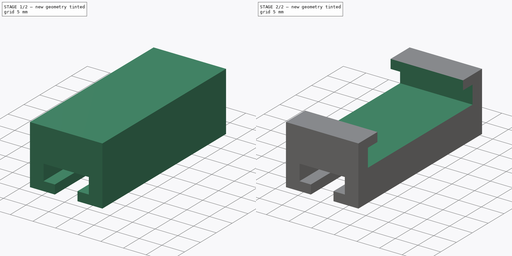
[diagram: build sequence overview — one tinted view per stage of 2, left to right]
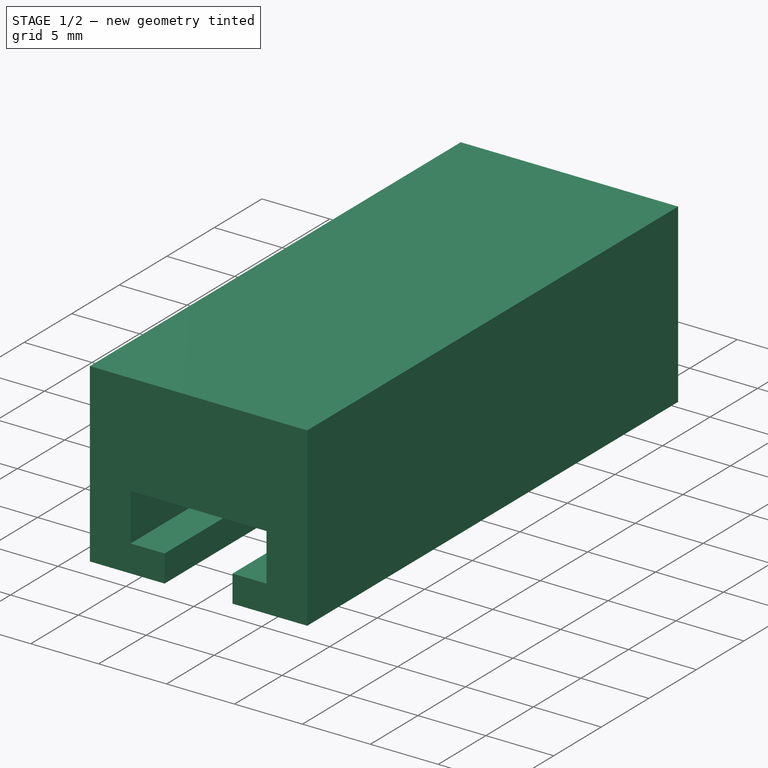
[diagram: stage 1 of 2 — iso view after this stage's code; geometry added in this stage tinted green]
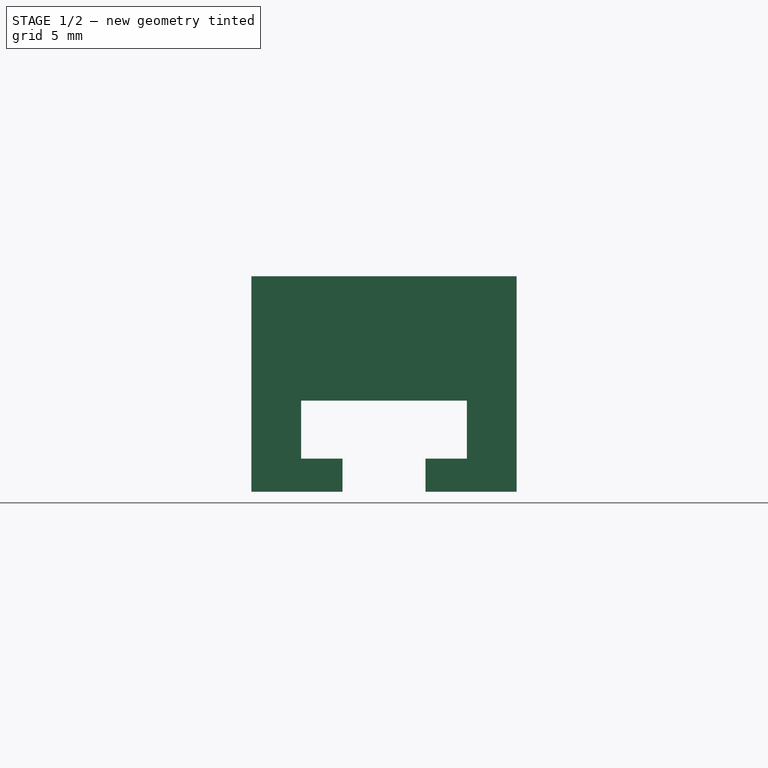
[diagram: stage 1 of 2 — front view after this stage's code; geometry added in this stage tinted green]
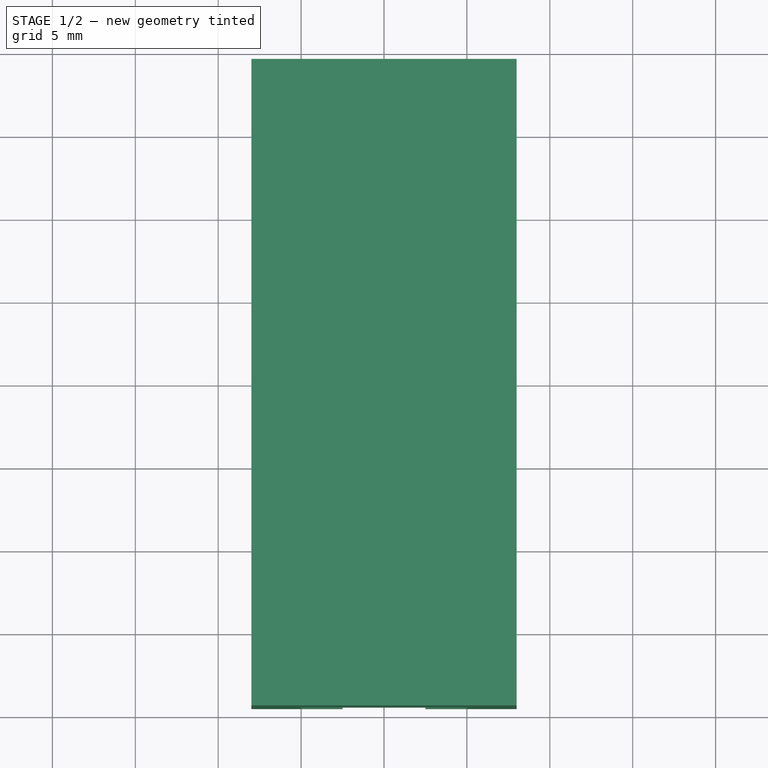
[diagram: stage 1 of 2 — top view after this stage's code; geometry added in this stage tinted green]
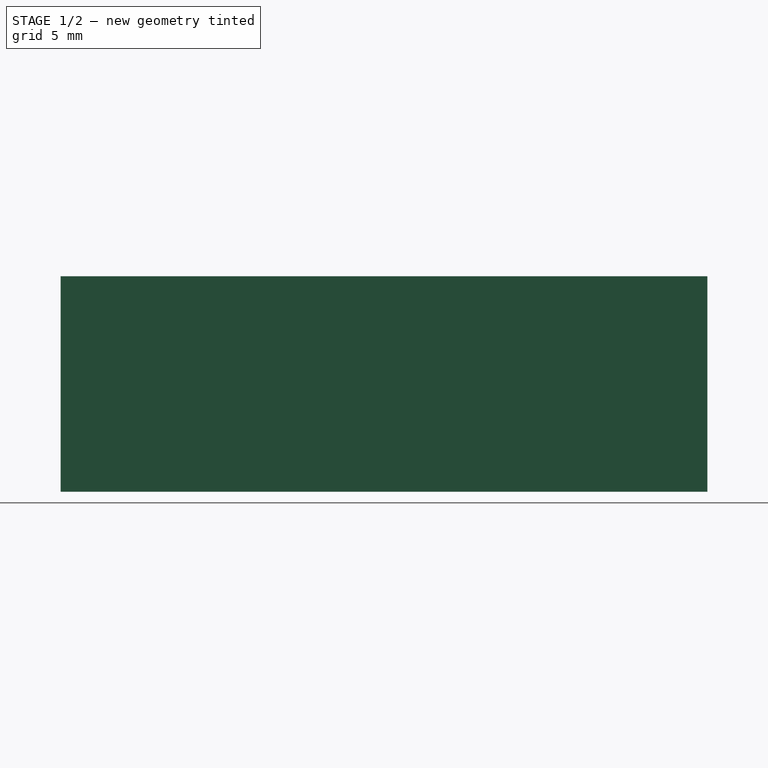
[diagram: stage 1 of 2 — right view after this stage's code; geometry added in this stage tinted green]
FCSTD DOCUMENT  (FreeCAD 0.18R16131 (Git))
Label: dishwasher-door-fixer
License: All rights reserved
LicenseURL: http://en.wikipedia.org/wiki/All_rights_reserved
objects: Sketcher::SketchObject×3, PartDesign::Pocket×2, Spreadsheet::Sheet×1, PartDesign::Pad×1, PartDesign::Body×1
note: 10 computed .brp shape members not serialized (recipe doc carries the construction recipe); baked Part::Feature solids carry a one-line shape summary decoded from their .brp

FEATURE [Spreadsheet::Sheet] Spreadsheet
  cells = A1=BaseWidth; B1(BaseWidth)==16mm; A2=BaseHeight; B2(BaseHeight)==39mm; A3=BaseDepth; B3(BaseDepth)==13mm; A4=GapLipDepth; B4(GapLipDepth)==3.5mm; A5=GapWidth; B5(GapWidth)==10mm; A6=GapDepth; B6(GapDepth)==5.5mm; A7=RailWidth; B7(RailWidth)==5mm; A8=SideGapWidth; B8(SideGapWidth)==BaseHeight - 2 * 6mm; A9=SideGapHeight; B9(SideGapHeight)==6mm; A10=SideLipHeight; B10(SideLipHeight)==2mm; A11=SideLipWidth; B11(SideLipWidth)==3mm; A12=SideGapDistance; B12(SideGapDistance)==BaseDepth - SideGapHeight; A13=Rounding; B13==0.5mm
FEATURE [Sketcher::SketchObject] Sketch  label="Base"
  MapMode = 5
  Support = -> [XY_Plane]
  expr: Constraints[10] = Spreadsheet.BaseHeight
  expr: Constraints[9] = Spreadsheet.BaseWidth
  sketch-geometry (4):
    g0: LineSegment StartX=-8 StartY=19.5 StartZ=0 EndX=8 EndY=19.5 EndZ=0
    g1: LineSegment StartX=8 StartY=19.5 StartZ=0 EndX=8 EndY=-19.5 EndZ=0
    g2: LineSegment StartX=8 StartY=-19.5 StartZ=0 EndX=-8 EndY=-19.5 EndZ=0
    g3: LineSegment StartX=-8 StartY=-19.5 StartZ=0 EndX=-8 EndY=19.5 EndZ=0
  constraints (11):
    c: Coincident(g0,g1)
    c: Coincident(g1,g2)
    c: Coincident(g2,g3)
    c: Coincident(g3,g0)
    c: Horizontal(g0)
    c: Horizontal(g2)
    c: Vertical(g1)
    c: Vertical(g3)
    c: Symmetric(g0,g2,g-1)
    c: DistanceX(g0,g0) = 16
    c: DistanceY(g1,g1) = 39
FEATURE [PartDesign::Pad] Pad  label="Base001"
  Length = 13
  Length2 = 100
  Profile = -> Sketch
  Type = 0
  expr: Length = Spreadsheet.BaseDepth
FEATURE [Sketcher::SketchObject] Sketch001  label="Gap"
  MapMode = 5
  Placement = pos=(0,19.5,0) rot=(0,0.707107,0.707107;3.14159rad)
  Support = -> [Pad]
  expr: Constraints[22] = Spreadsheet.GapDepth
  expr: Constraints[20] = Spreadsheet.RailWidth
  expr: Constraints[18] = Spreadsheet.GapLipDepth
  expr: Constraints[12] = Spreadsheet.GapWidth
  sketch-geometry (8):
    g0: LineSegment StartX=-5 StartY=5.5 StartZ=0 EndX=5 EndY=5.5 EndZ=0
    g1: LineSegment StartX=5 StartY=5.5 StartZ=0 EndX=5 EndY=2 EndZ=0
    g2: LineSegment StartX=5 StartY=2 StartZ=0 EndX=2.5 EndY=2 EndZ=0
    g3: LineSegment StartX=2.5 StartY=2 StartZ=0 EndX=2.5 EndY=0 EndZ=0
    g4: LineSegment StartX=2.5 StartY=0 StartZ=0 EndX=-2.5 EndY=0 EndZ=0
    g5: LineSegment StartX=-2.5 StartY=0 StartZ=0 EndX=-2.5 EndY=2 EndZ=0
    g6: LineSegment StartX=-2.5 StartY=2 StartZ=0 EndX=-5 EndY=2 EndZ=0
    g7: LineSegment StartX=-5 StartY=2 StartZ=0 EndX=-5 EndY=5.5 EndZ=0
  constraints (23):
    c: Coincident(g0,g1)
    c: Vertical(g1)
    c: Coincident(g1,g2)
    c: Horizontal(g2)
    c: Coincident(g2,g3)
    c: Vertical(g3)
    c: Coincident(g3,g4)
    c: Horizontal(g4)
    c: Coincident(g4,g5)
    c: Coincident(g5,g6)
    c: Coincident(g6,g7)
    c: Coincident(g7,g0)
    c: DistanceX(g0,g0) = 10
    c: Vertical(g7)
    c: Vertical(g5)
    c: Equal(g1,g7)
    c: Equal(g5,g3)
    c: Symmetric(g0,g0,g-2)
    c: DistanceY(g7,g7) = 3.5
    c: Equal(g6,g2)
    c: DistanceX(g4,g4) = 5
    c: Horizontal(g4,g-1)
    c: DistanceY(g3,g0) = 5.5
FEATURE [PartDesign::Pocket] Pocket  label="Gap001"
  BaseFeature = -> Pad
  Length = 5
  Length2 = 100
  Profile = -> Sketch001
  Type = 1
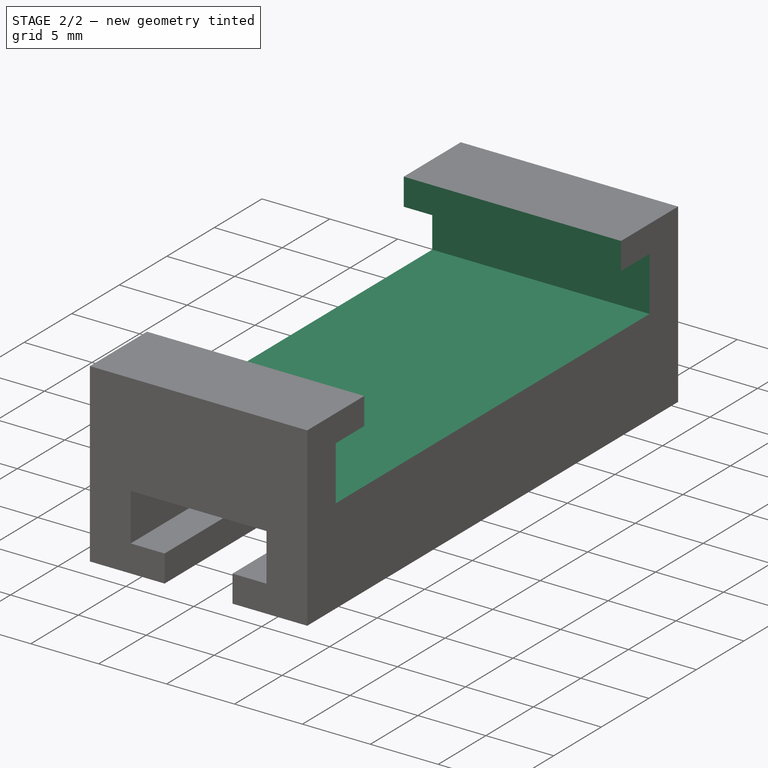
[diagram: stage 2 of 2 — iso view after this stage's code; geometry added in this stage tinted green]
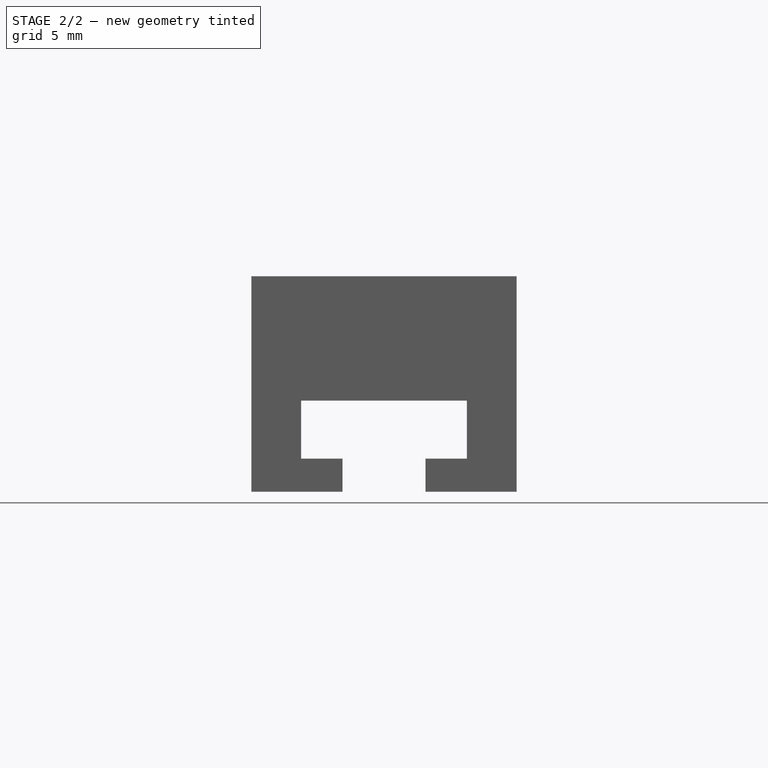
[diagram: stage 2 of 2 — front view after this stage's code; geometry added in this stage tinted green]
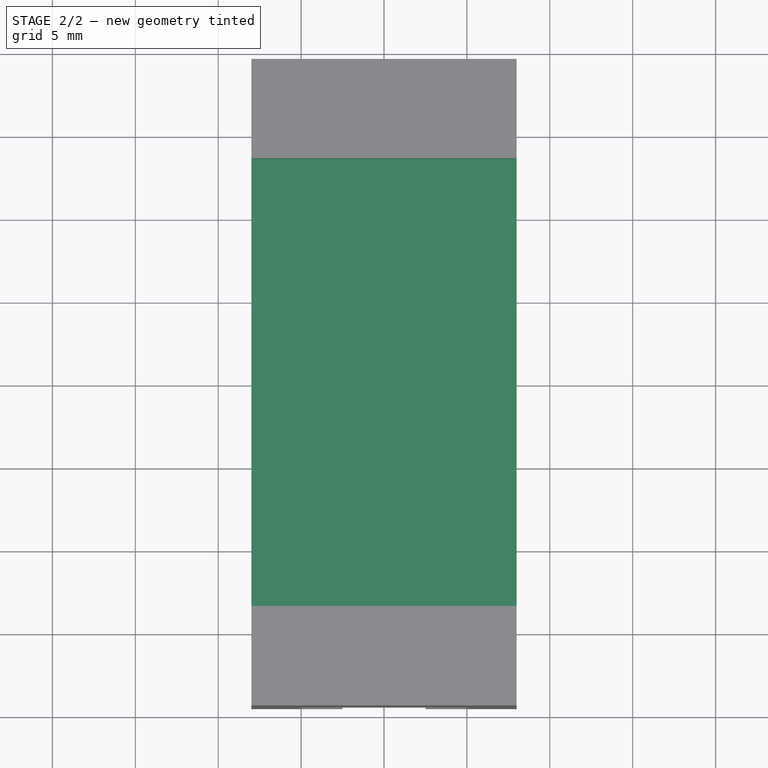
[diagram: stage 2 of 2 — top view after this stage's code; geometry added in this stage tinted green]
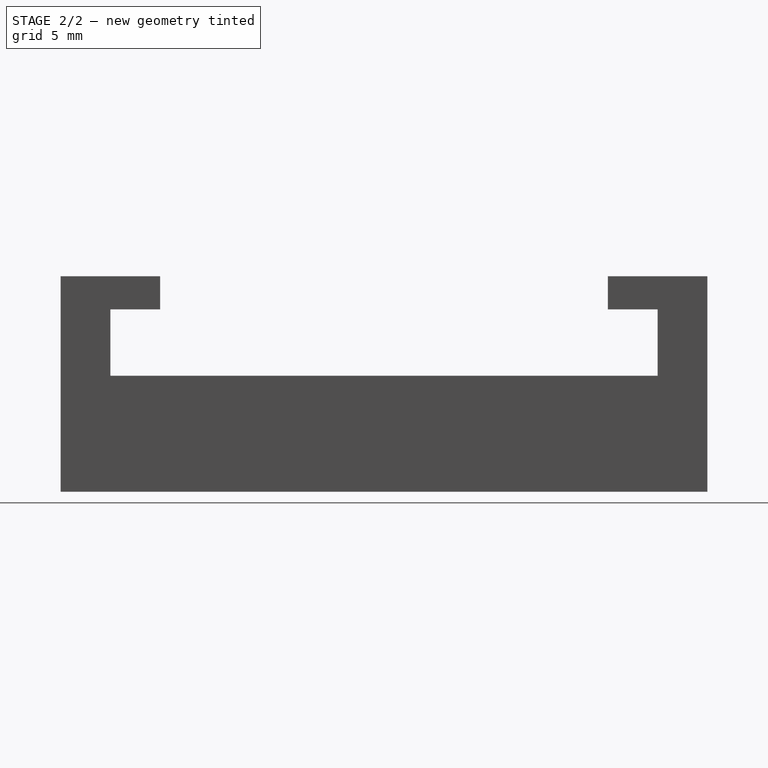
[diagram: stage 2 of 2 — right view after this stage's code; geometry added in this stage tinted green]
FEATURE [Sketcher::SketchObject] Sketch002  label="SideGap"
  MapMode = 5
  Placement = pos=(8,0,0) rot=(0.57735,0.57735,0.57735;2.0944rad)
  Support = -> [Pocket]
  expr: Constraints[21] = Spreadsheet.SideLipWidth
  expr: Constraints[20] = Spreadsheet.SideLipHeight
  expr: Constraints[19] = Spreadsheet.SideGapHeight
  expr: Constraints[22] = Spreadsheet.SideGapDistance
  expr: Constraints[17] = Spreadsheet.SideGapWidth
  sketch-geometry (8):
    g0: LineSegment StartX=-13.5 StartY=13 StartZ=0 EndX=-13.5 EndY=11 EndZ=0
    g1: LineSegment StartX=-13.5 StartY=11 StartZ=0 EndX=-16.5 EndY=11 EndZ=0
    g2: LineSegment StartX=-16.5 StartY=11 StartZ=0 EndX=-16.5 EndY=7 EndZ=0
    g3: LineSegment StartX=-16.5 StartY=7 StartZ=0 EndX=16.5 EndY=7 EndZ=0
    g4: LineSegment StartX=16.5 StartY=7 StartZ=0 EndX=16.5 EndY=11 EndZ=0
    g5: LineSegment StartX=16.5 StartY=11 StartZ=0 EndX=13.5 EndY=11 EndZ=0
    g6: LineSegment StartX=13.5 StartY=11 StartZ=0 EndX=13.5 EndY=13 EndZ=0
    g7: LineSegment StartX=13.5 StartY=13 StartZ=0 EndX=-13.5 EndY=13 EndZ=0
  constraints (23):
    c: Vertical(g0)
    c: Coincident(g0,g1)
    c: Horizontal(g1)
    c: Coincident(g1,g2)
    c: Coincident(g2,g3)
    c: Horizontal(g3)
    c: Coincident(g3,g4)
    c: Vertical(g4)
    c: Coincident(g4,g5)
    c: Coincident(g5,g6)
    c: Coincident(g6,g7)
    c: Coincident(g7,g0)
    c: Vertical(g2)
    c: Equal(g2,g4)
    c: Equal(g5,g1)
    c: Vertical(g6)
    c: Equal(g6,g0)
    c: DistanceX(g7,g7) = 27
    c: Symmetric(g6,g0,g-2)
    c: DistanceY(g2,g0) = 6
    c: DistanceY(g0,g0) = 2
    c: DistanceX(g1,g1) = 3
    c: DistanceY(g-1,g2) = 7
FEATURE [PartDesign::Pocket] Pocket001  label="SideGap001"
  BaseFeature = -> Pocket
  Length = 5
  Length2 = 100
  Profile = -> Sketch002
  Type = 1
FEATURE [PartDesign::Body] Body
  Group = -> [Sketch,Pad,Sketch001,Pocket,Sketch002,Pocket001]
  Origin = -> Origin
  Tip = -> Pocket001
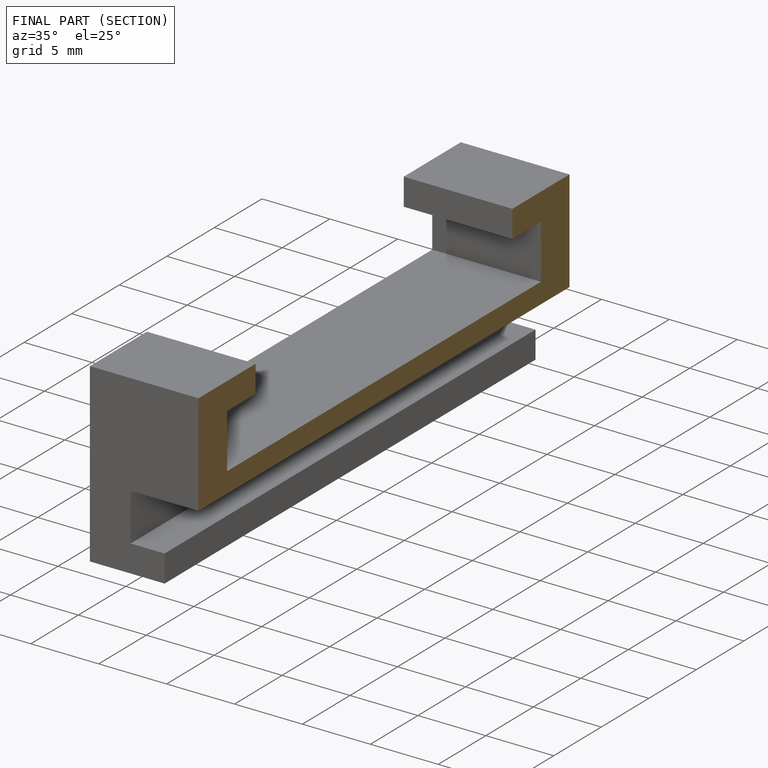
[diagram: finished part — half-section view (interior)]
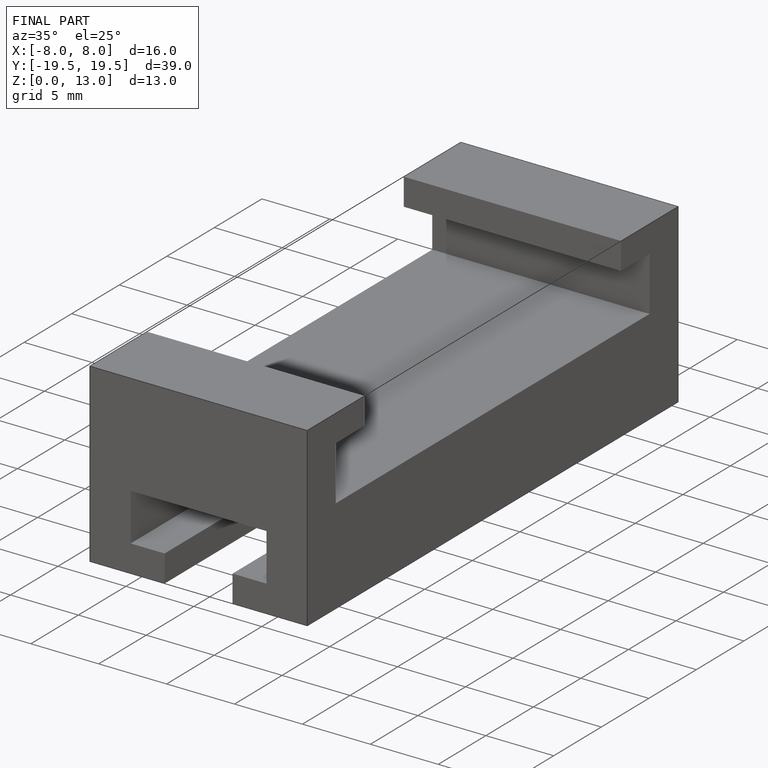
[diagram: finished part — iso view with bounding-box wireframe]
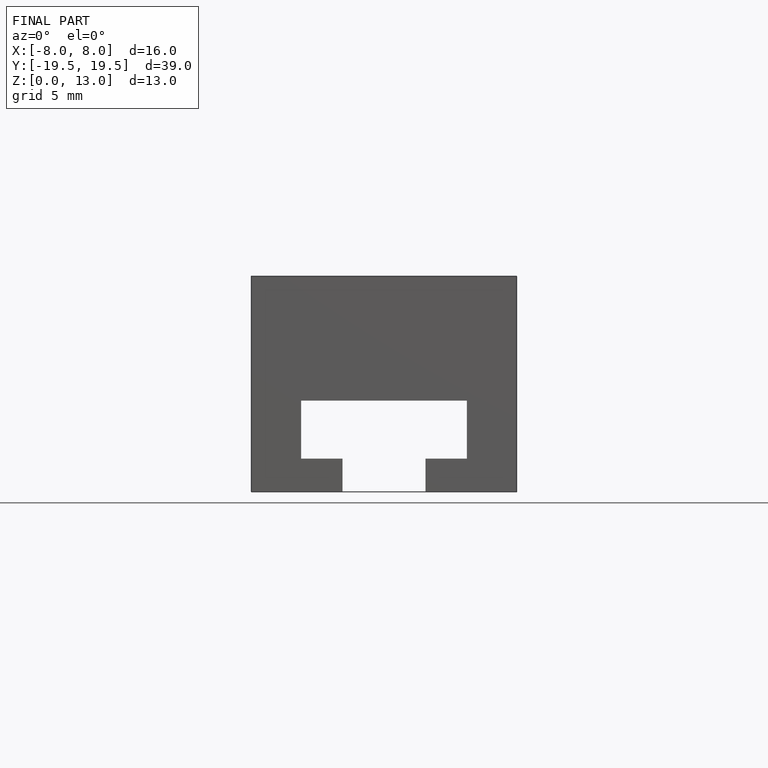
[diagram: finished part — front view with bounding-box wireframe]
